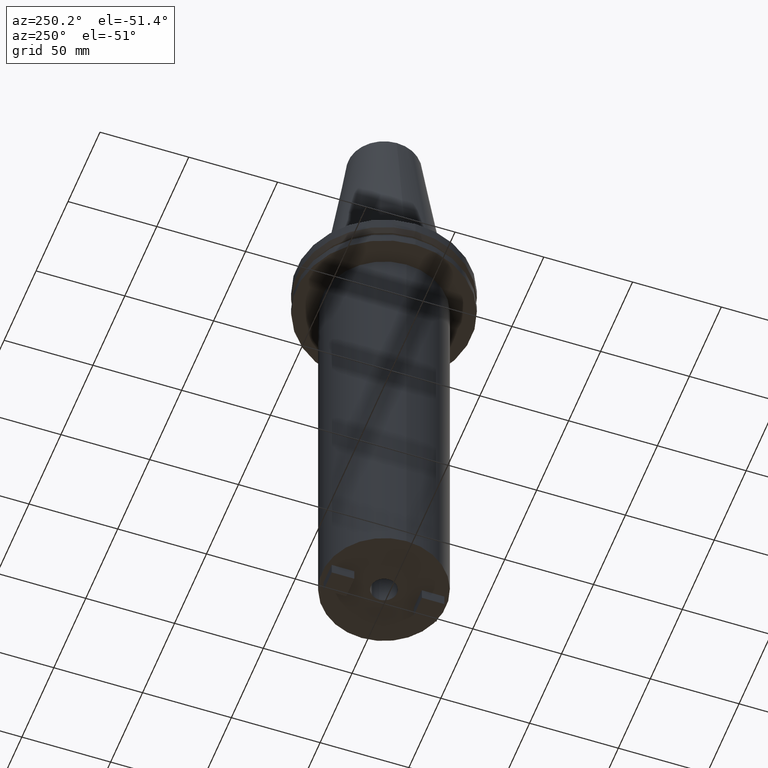
[diagram: clean part render]
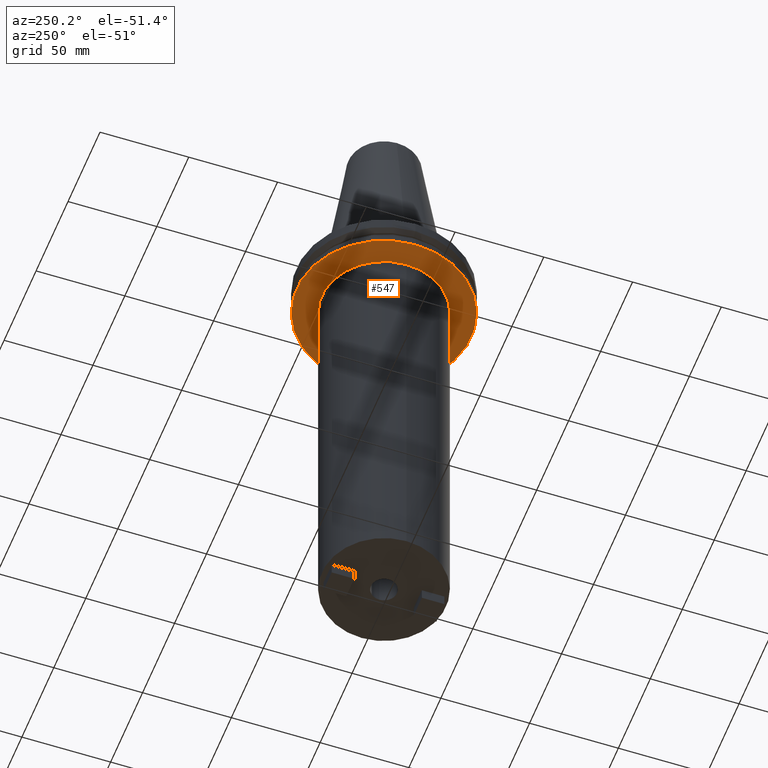
[diagram: same view with one face highlighted and labeled with its STEP entity id]
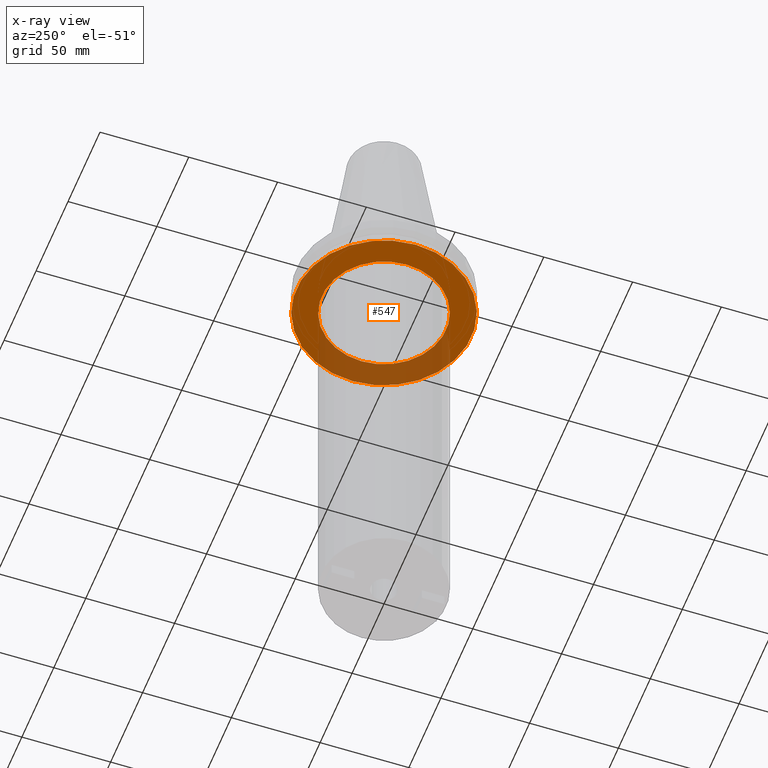
[diagram: x-ray of the same camera — body ghosted, the highlighted face saturated]
A machine part, auxiliary view. The second image highlights one B-rep face of the part: STEP entity #547.
The next image is the same camera in x-ray: the body ghosted, the highlighted face saturated — about 31% of this face is hidden behind the body in this view.
In plain terms, the highlighted planar face has unit normal (0, -0, 1).
Its self-contained STEP definition (entity closure, byte-faithful):
#2 = VERTEX_POINT ( 'NONE', #973 ) ;
#51 = FACE_BOUND ( 'NONE', #707, .T. ) ;
#75 = EDGE_CURVE ( 'NONE', #1002, #145, #792, .T. ) ;
#78 = AXIS2_PLACEMENT_3D ( 'NONE', #163, #790, #227 ) ;
#131 = DIRECTION ( 'NONE',  ( 1.000000000000000000, 0.000000000000000000, 0.000000000000000000 ) ) ;
#139 = VERTEX_POINT ( 'NONE', #815 ) ;
#141 = DIRECTION ( 'NONE',  ( 1.000000000000000000, 0.000000000000000000, 0.000000000000000000 ) ) ;
#145 = VERTEX_POINT ( 'NONE', #742 ) ;
#159 = AXIS2_PLACEMENT_3D ( 'NONE', #909, #517, #131 ) ;
#163 = CARTESIAN_POINT ( 'NONE',  ( 0.000000000000000000, 0.000000000000000000, -19.04999999999999716 ) ) ;
#222 = DIRECTION ( 'NONE',  ( -0.000000000000000000, -0.000000000000000000, 1.000000000000000000 ) ) ;
#227 = DIRECTION ( 'NONE',  ( 1.000000000000000000, 0.000000000000000000, 0.000000000000000000 ) ) ;
#304 = DIRECTION ( 'NONE',  ( 1.000000000000000000, 0.000000000000000000, 0.000000000000000000 ) ) ;
#315 = AXIS2_PLACEMENT_3D ( 'NONE', #960, #788, #708 ) ;
#474 = EDGE_CURVE ( 'NONE', #145, #1002, #966, .T. ) ;
#481 = ORIENTED_EDGE ( 'NONE', *, *, #75, .F. ) ;
#517 = DIRECTION ( 'NONE',  ( 0.000000000000000000, -0.000000000000000000, 1.000000000000000000 ) ) ;
#543 = CARTESIAN_POINT ( 'NONE',  ( 0.000000000000000000, 0.000000000000000000, -19.04999999999999716 ) ) ;
#547 = ADVANCED_FACE ( 'NONE', ( #821, #51 ), #590, .F. ) ;
#549 = CIRCLE ( 'NONE', #979, 34.92499999999999716 ) ;
#551 = ORIENTED_EDGE ( 'NONE', *, *, #474, .F. ) ;
#565 = AXIS2_PLACEMENT_3D ( 'NONE', #543, #222, #141 ) ;
#590 = PLANE ( 'NONE',  #159 ) ;
#627 = CIRCLE ( 'NONE', #565, 34.92499999999999716 ) ;
#639 = ORIENTED_EDGE ( 'NONE', *, *, #928, .T. ) ;
#685 = ORIENTED_EDGE ( 'NONE', *, *, #951, .T. ) ;
#687 = CARTESIAN_POINT ( 'NONE',  ( -49.21499999999998920, 6.027099222003697037E-15, -19.04999999999999716 ) ) ;
#707 = EDGE_LOOP ( 'NONE', ( #639, #685 ) ) ;
#708 = DIRECTION ( 'NONE',  ( 1.000000000000000000, 0.000000000000000000, 0.000000000000000000 ) ) ;
#742 = CARTESIAN_POINT ( 'NONE',  ( 49.21499999999998920, 0.000000000000000000, -19.04999999999999716 ) ) ;
#779 = CARTESIAN_POINT ( 'NONE',  ( 0.000000000000000000, 0.000000000000000000, -19.04999999999999716 ) ) ;
#788 = DIRECTION ( 'NONE',  ( -0.000000000000000000, -0.000000000000000000, 1.000000000000000000 ) ) ;
#790 = DIRECTION ( 'NONE',  ( -0.000000000000000000, -0.000000000000000000, 1.000000000000000000 ) ) ;
#792 = CIRCLE ( 'NONE', #78, 49.21499999999998920 ) ;
#815 = CARTESIAN_POINT ( 'NONE',  ( -34.92499999999999716, 4.277078946022130887E-15, -19.04999999999999716 ) ) ;
#821 = FACE_OUTER_BOUND ( 'NONE', #903, .T. ) ;
#858 = DIRECTION ( 'NONE',  ( -0.000000000000000000, -0.000000000000000000, 1.000000000000000000 ) ) ;
#903 = EDGE_LOOP ( 'NONE', ( #551, #481 ) ) ;
#909 = CARTESIAN_POINT ( 'NONE',  ( 0.000000000000000000, 49.21499999999998920, -19.04999999999999716 ) ) ;
#928 = EDGE_CURVE ( 'NONE', #2, #139, #627, .T. ) ;
#951 = EDGE_CURVE ( 'NONE', #139, #2, #549, .T. ) ;
#960 = CARTESIAN_POINT ( 'NONE',  ( 0.000000000000000000, 0.000000000000000000, -19.04999999999999716 ) ) ;
#966 = CIRCLE ( 'NONE', #315, 49.21499999999998920 ) ;
#973 = CARTESIAN_POINT ( 'NONE',  ( 34.92499999999999716, 0.000000000000000000, -19.04999999999999716 ) ) ;
#979 = AXIS2_PLACEMENT_3D ( 'NONE', #779, #858, #304 ) ;
#1002 = VERTEX_POINT ( 'NONE', #687 ) ;